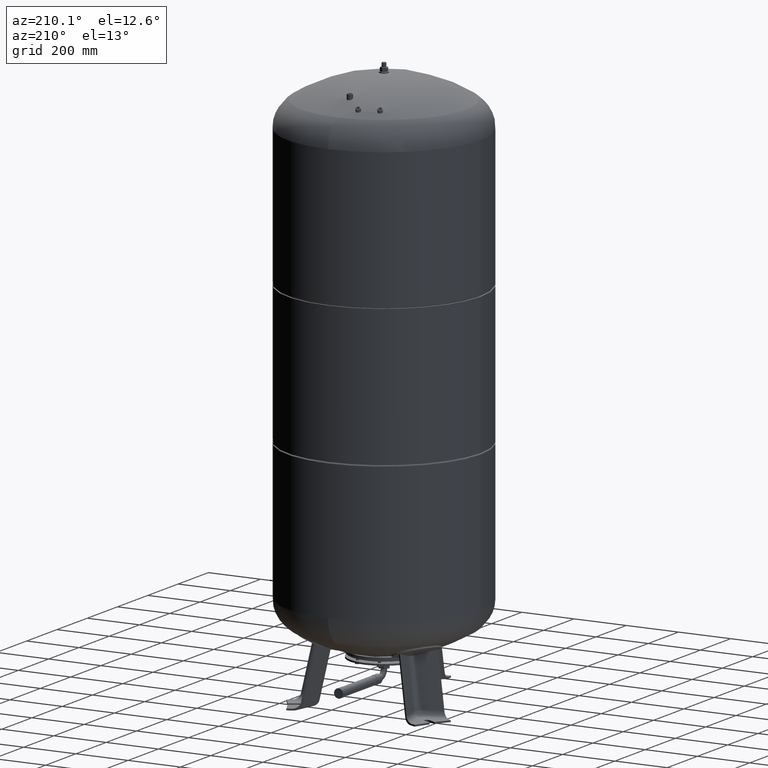
[diagram: clean part render]
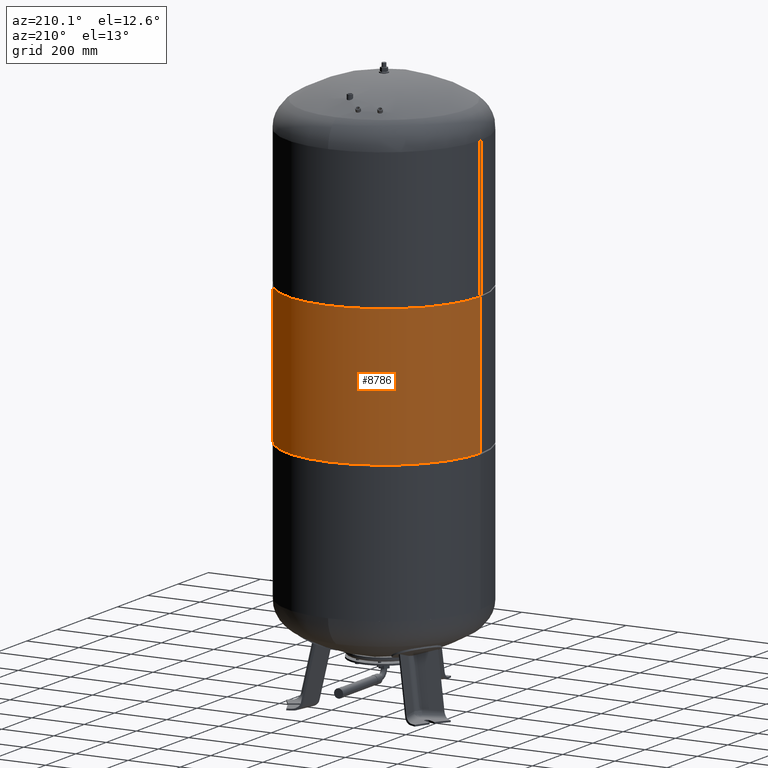
[diagram: same view with one face highlighted and labeled with its STEP entity id]
A machine part, auxiliary view. The second image highlights one B-rep face of the part: STEP entity #8786.
In plain terms, the highlighted cylindrical surface (partial cylindrical patch) has radius 370 mm, axis along (0, 0, 1).
Its self-contained STEP definition (entity closure, byte-faithful):
#8586=CARTESIAN_POINT('',(369.999999999999550,0.0,1430.333333333333300));
#8587=VERTEX_POINT('',#8586);
#8588=CARTESIAN_POINT('',(369.999999999999370,0.0,899.666666666666520));
#8589=VERTEX_POINT('',#8588);
#8590=CARTESIAN_POINT('',(369.999999999999550,0.0,1430.333333333333300));
#8591=DIRECTION('',(0.0,0.0,-1.0));
#8592=VECTOR('',#8591,530.666666666666740);
#8593=LINE('',#8590,#8592);
#8594=EDGE_CURVE('',#8587,#8589,#8593,.T.);
#8596=CARTESIAN_POINT('',(-369.999999999999430,-4.531044E-014,1430.333333333333300));
#8597=VERTEX_POINT('',#8596);
#8605=CARTESIAN_POINT('',(-369.999999999999430,-4.531044E-014,899.666666666666400));
#8606=VERTEX_POINT('',#8605);
#8607=CARTESIAN_POINT('',(-369.999999999999430,-4.531044E-014,1430.333333333333300));
#8608=DIRECTION('',(0.0,0.0,-1.0));
#8609=VECTOR('',#8608,530.666666666666860);
#8610=LINE('',#8607,#8609);
#8611=EDGE_CURVE('',#8597,#8606,#8610,.T.);
#8754=CARTESIAN_POINT('',(-5.562655E-015,0.0,899.666666666666400));
#8755=DIRECTION('',(0.0,0.0,1.0));
#8756=DIRECTION('',(1.0,0.0,0.0));
#8757=AXIS2_PLACEMENT_3D('',#8754,#8755,#8756);
#8758=CIRCLE('',#8757,369.999999999999370);
#8759=EDGE_CURVE('',#8589,#8606,#8758,.T.);
#8769=CARTESIAN_POINT('',(-3.944305E-030,0.0,1164.999999999999800));
#8770=DIRECTION('',(2.096478E-017,0.0,1.0));
#8771=DIRECTION('',(1.0,0.0,0.0));
#8772=AXIS2_PLACEMENT_3D('',#8769,#8770,#8771);
#8773=CYLINDRICAL_SURFACE('',#8772,369.999999999999430);
#8774=ORIENTED_EDGE('',*,*,#8594,.T.);
#8775=ORIENTED_EDGE('',*,*,#8759,.T.);
#8776=ORIENTED_EDGE('',*,*,#8611,.F.);
#8777=CARTESIAN_POINT('',(5.562655E-015,0.0,1430.333333333333300));
#8778=DIRECTION('',(0.0,0.0,1.0));
#8779=DIRECTION('',(1.0,0.0,0.0));
#8780=AXIS2_PLACEMENT_3D('',#8777,#8778,#8779);
#8781=CIRCLE('',#8780,369.999999999999550);
#8782=EDGE_CURVE('',#8587,#8597,#8781,.T.);
#8783=ORIENTED_EDGE('',*,*,#8782,.F.);
#8784=EDGE_LOOP('',(#8774,#8775,#8776,#8783));
#8785=FACE_OUTER_BOUND('',#8784,.T.);
#8786=ADVANCED_FACE('',(#8785),#8773,.T.);